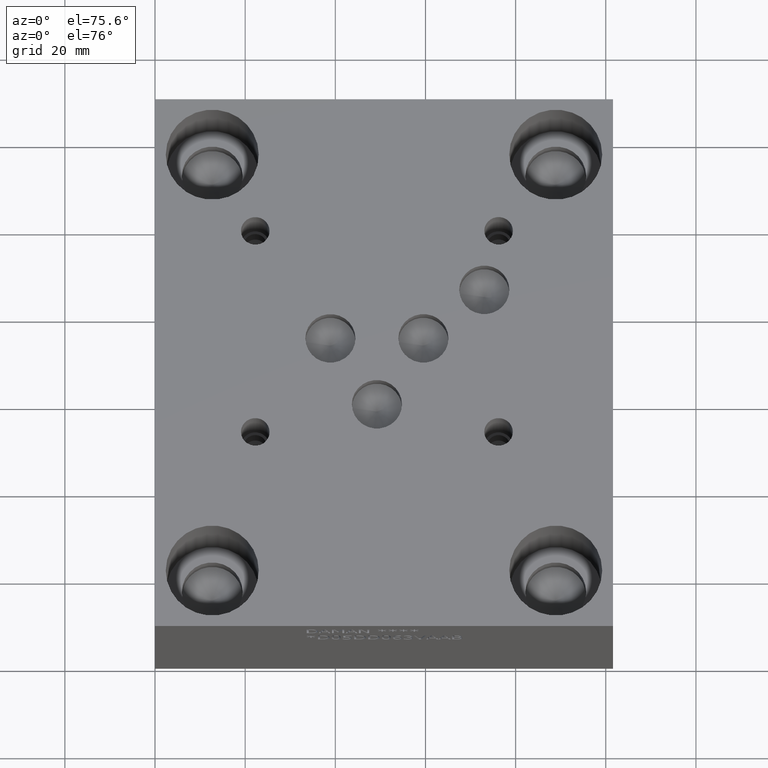
[diagram: clean part render]
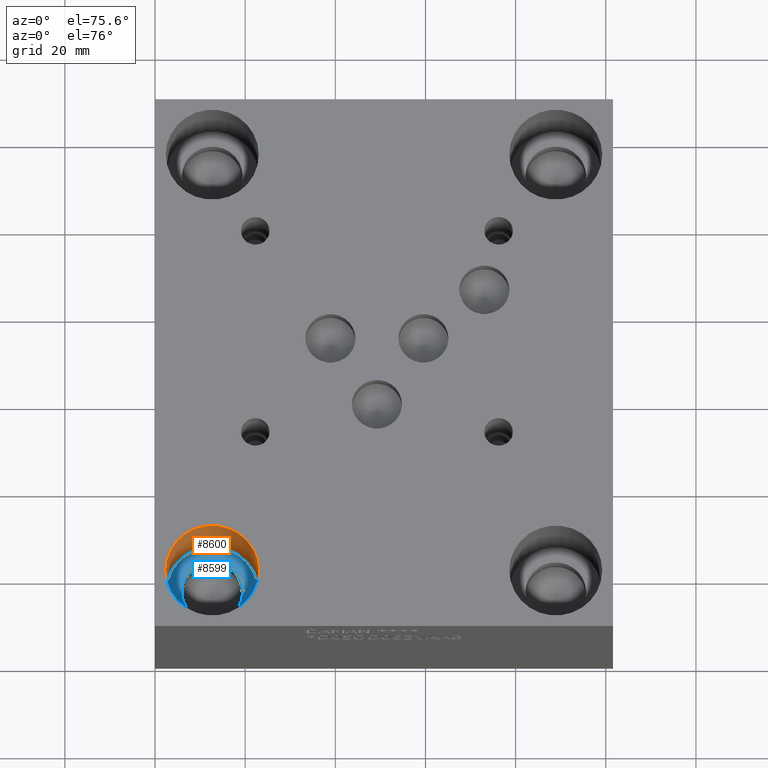
[diagram: same view with the hole feature highlighted: cylindrical wall and planar end face, labeled with their STEP entity ids]
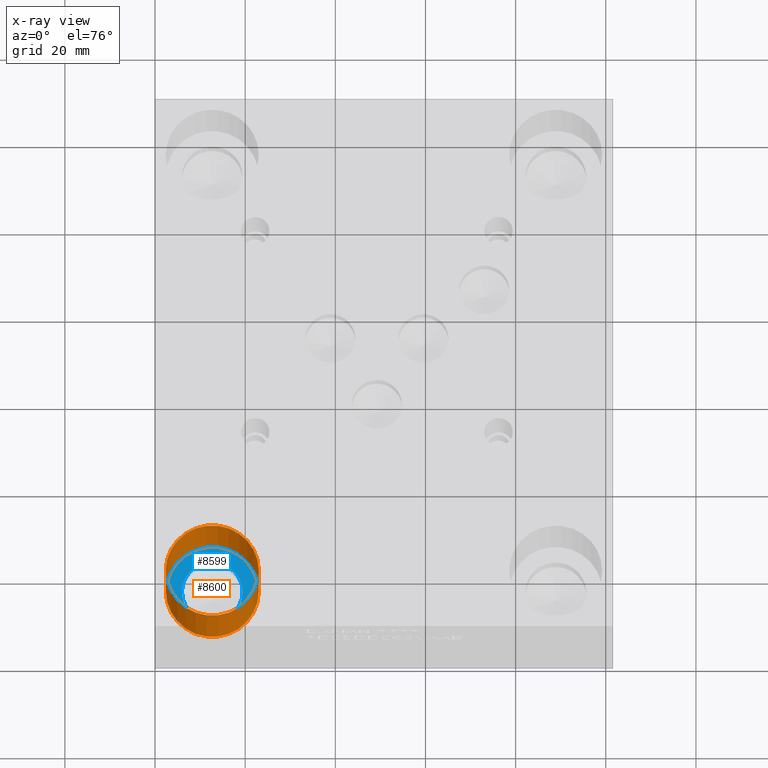
[diagram: x-ray of the same camera — body ghosted, the hole faces saturated]
A machine part, auxiliary view. The highlighted faces form one hole feature of diameter 20.6248 mm: the cylindrical wall (entity #8600, orange) and its adjacent planar end face (entity #8599, blue) — they share a circular edge in the B-rep.
The next image is the same camera in x-ray (body ghosted, the hole faces saturated) — the bore reads through the body.
Wall:
#87=CIRCLE('',#8985,10.3124);
#88=CIRCLE('',#8986,10.3124);
#90=CIRCLE('',#8989,10.3124);
#91=CIRCLE('',#8990,10.3124);
#164=CYLINDRICAL_SURFACE('',#8988,10.3124);
#1010=FACE_OUTER_BOUND('',#1489,.T.);
#1489=EDGE_LOOP('',(#7356,#7357,#7358,#7359,#7360,#7361));
#2346=LINE('',#14592,#3173);
#3173=VECTOR('',#10555,10.3124);
#3946=VERTEX_POINT('',#14581);
#3947=VERTEX_POINT('',#14582);
#3949=VERTEX_POINT('',#14588);
#3950=VERTEX_POINT('',#14589);
#5109=EDGE_CURVE('',#3946,#3947,#87,.T.);
#5110=EDGE_CURVE('',#3947,#3946,#88,.T.);
#5112=EDGE_CURVE('',#3949,#3950,#90,.T.);
#5113=EDGE_CURVE('',#3950,#3949,#91,.T.);
#5114=EDGE_CURVE('',#3950,#3947,#2346,.T.);
#7356=ORIENTED_EDGE('',*,*,#5112,.F.);
#7357=ORIENTED_EDGE('',*,*,#5113,.F.);
#7358=ORIENTED_EDGE('',*,*,#5114,.T.);
#7359=ORIENTED_EDGE('',*,*,#5109,.F.);
#7360=ORIENTED_EDGE('',*,*,#5110,.F.);
#7361=ORIENTED_EDGE('',*,*,#5114,.F.);
#8600=ADVANCED_FACE('',(#1010),#164,.F.);
#8985=AXIS2_PLACEMENT_3D('',#14583,#10543,#10544);
#8986=AXIS2_PLACEMENT_3D('',#14584,#10545,#10546);
#8988=AXIS2_PLACEMENT_3D('',#14587,#10549,#10550);
#8989=AXIS2_PLACEMENT_3D('',#14590,#10551,#10552);
#8990=AXIS2_PLACEMENT_3D('',#14591,#10553,#10554);
#10543=DIRECTION('center_axis',(0.,0.,1.));
#10544=DIRECTION('ref_axis',(1.,0.,0.));
#10545=DIRECTION('center_axis',(0.,0.,1.));
#10546=DIRECTION('ref_axis',(1.,0.,0.));
#10549=DIRECTION('center_axis',(0.,0.,1.));
#10550=DIRECTION('ref_axis',(1.,0.,0.));
#10551=DIRECTION('center_axis',(0.,0.,-1.));
#10552=DIRECTION('ref_axis',(1.,0.,0.));
#10553=DIRECTION('center_axis',(0.,0.,-1.));
#10554=DIRECTION('ref_axis',(1.,0.,0.));
#10555=DIRECTION('',(0.,0.,-1.));
#14581=CARTESIAN_POINT('',(23.0124,12.7,19.05));
#14582=CARTESIAN_POINT('',(2.3876,12.7,19.05));
#14583=CARTESIAN_POINT('Origin',(12.7,12.7,19.05));
#14584=CARTESIAN_POINT('Origin',(12.7,12.7,19.05));
#14587=CARTESIAN_POINT('Origin',(12.7,12.7,28.575));
#14588=CARTESIAN_POINT('',(23.0124,12.7,38.1));
#14589=CARTESIAN_POINT('',(2.3876,12.7,38.1));
#14590=CARTESIAN_POINT('Origin',(12.7,12.7,38.1));
#14591=CARTESIAN_POINT('Origin',(12.7,12.7,38.1));
#14592=CARTESIAN_POINT('',(2.3876,12.7,28.575));
End face:
#87=CIRCLE('',#8985,10.3124);
#88=CIRCLE('',#8986,10.3124);
#89=CIRCLE('',#8987,6.7437);
#221=FACE_BOUND('',#1488,.T.);
#1009=FACE_OUTER_BOUND('',#1487,.T.);
#1487=EDGE_LOOP('',(#7353,#7354));
#1488=EDGE_LOOP('',(#7355));
#3946=VERTEX_POINT('',#14581);
#3947=VERTEX_POINT('',#14582);
#3948=VERTEX_POINT('',#14585);
#5109=EDGE_CURVE('',#3946,#3947,#87,.T.);
#5110=EDGE_CURVE('',#3947,#3946,#88,.T.);
#5111=EDGE_CURVE('',#3948,#3948,#89,.T.);
#7353=ORIENTED_EDGE('',*,*,#5109,.T.);
#7354=ORIENTED_EDGE('',*,*,#5110,.T.);
#7355=ORIENTED_EDGE('',*,*,#5111,.F.);
#7831=PLANE('',#8984);
#8599=ADVANCED_FACE('',(#1009,#221),#7831,.T.);
#8984=AXIS2_PLACEMENT_3D('',#14580,#10541,#10542);
#8985=AXIS2_PLACEMENT_3D('',#14583,#10543,#10544);
#8986=AXIS2_PLACEMENT_3D('',#14584,#10545,#10546);
#8987=AXIS2_PLACEMENT_3D('',#14586,#10547,#10548);
#10541=DIRECTION('center_axis',(0.,0.,1.));
#10542=DIRECTION('ref_axis',(1.,0.,0.));
#10543=DIRECTION('center_axis',(0.,0.,1.));
#10544=DIRECTION('ref_axis',(1.,0.,0.));
#10545=DIRECTION('center_axis',(0.,0.,1.));
#10546=DIRECTION('ref_axis',(1.,0.,0.));
#10547=DIRECTION('center_axis',(0.,0.,1.));
#10548=DIRECTION('ref_axis',(1.,0.,0.));
#14580=CARTESIAN_POINT('Origin',(12.7,12.7,19.05));
#14581=CARTESIAN_POINT('',(23.0124,12.7,19.05));
#14582=CARTESIAN_POINT('',(2.3876,12.7,19.05));
#14583=CARTESIAN_POINT('Origin',(12.7,12.7,19.05));
#14584=CARTESIAN_POINT('Origin',(12.7,12.7,19.05));
#14585=CARTESIAN_POINT('',(5.9563,12.7,19.05));
#14586=CARTESIAN_POINT('Origin',(12.7,12.7,19.05));